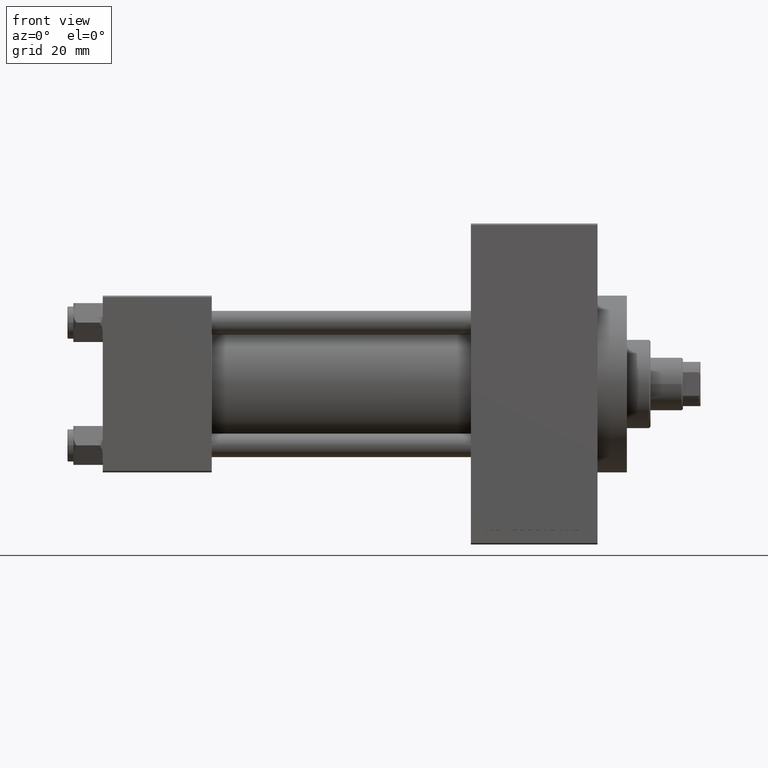
[diagram: clean part render]
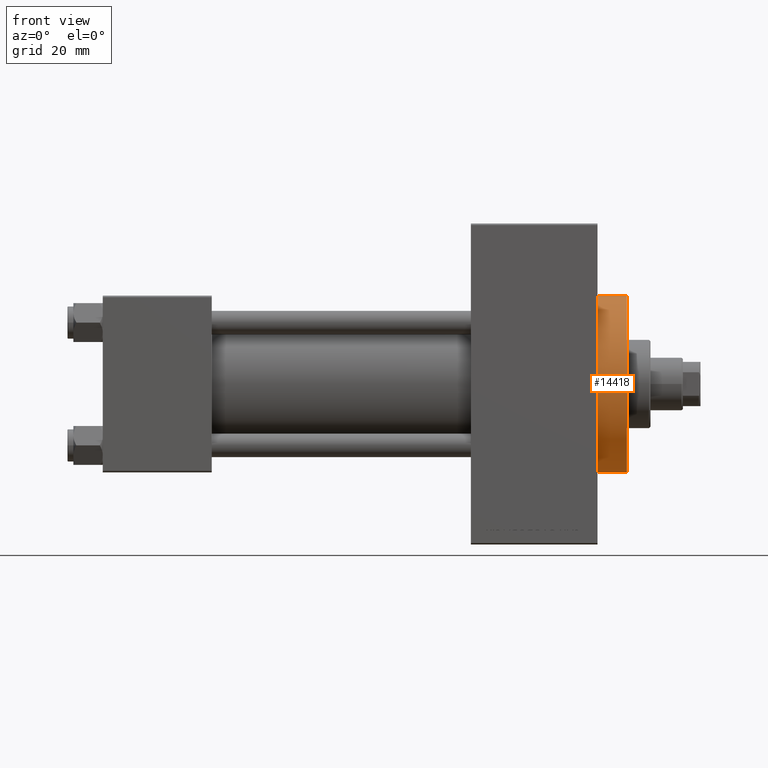
[diagram: same view with one face highlighted and labeled with its STEP entity id]
A machine part, front view. The second image highlights one B-rep face of the part: STEP entity #14418.
In plain terms, the highlighted cylindrical surface (partial cylindrical patch) has radius 30 mm, axis along (-1, -0, -0).
Its self-contained STEP definition (entity closure, byte-faithful):
#524 = VERTEX_POINT ( 'NONE', #17421 ) ;
#1180 = CARTESIAN_POINT ( 'NONE',  ( 178.0000000000000000, 0.000000000000000000, 30.00000000000000000 ) ) ;
#1200 = CARTESIAN_POINT ( 'NONE',  ( 167.9999999999999716, 0.000000000000000000, 0.000000000000000000 ) ) ;
#1450 = CYLINDRICAL_SURFACE ( 'NONE', #45711, 30.00000000000000000 ) ;
#2148 = FACE_OUTER_BOUND ( 'NONE', #44214, .T. ) ;
#2491 = CARTESIAN_POINT ( 'NONE',  ( 178.0000000000000000, 3.673940397442059178E-15, -30.00000000000000000 ) ) ;
#3635 = CARTESIAN_POINT ( 'NONE',  ( 178.0000000000000000, 0.000000000000000000, 30.00000000000000000 ) ) ;
#4880 = AXIS2_PLACEMENT_3D ( 'NONE', #45849, #24090, #27914 ) ;
#5480 = ORIENTED_EDGE ( 'NONE', *, *, #6774, .F. ) ;
#6774 = EDGE_CURVE ( 'NONE', #9999, #524, #34966, .T. ) ;
#7449 = VERTEX_POINT ( 'NONE', #20222 ) ;
#8022 = DIRECTION ( 'NONE',  ( 0.000000000000000000, 0.000000000000000000, -1.000000000000000000 ) ) ;
#9320 = DIRECTION ( 'NONE',  ( -1.000000000000000000, -0.000000000000000000, -0.000000000000000000 ) ) ;
#9999 = VERTEX_POINT ( 'NONE', #23067 ) ;
#11414 = ORIENTED_EDGE ( 'NONE', *, *, #28260, .F. ) ;
#11943 = ORIENTED_EDGE ( 'NONE', *, *, #22233, .T. ) ;
#12914 = EDGE_CURVE ( 'NONE', #41263, #524, #47216, .T. ) ;
#13714 = CIRCLE ( 'NONE', #25935, 30.00000000000000000 ) ;
#14418 = ADVANCED_FACE ( 'NONE', ( #2148 ), #1450, .T. ) ;
#15746 = DIRECTION ( 'NONE',  ( 1.000000000000000000, 0.000000000000000000, 0.000000000000000000 ) ) ;
#16000 = DIRECTION ( 'NONE',  ( 0.000000000000000000, 0.000000000000000000, 1.000000000000000000 ) ) ;
#16245 = CARTESIAN_POINT ( 'NONE',  ( 178.0000000000000000, 0.000000000000000000, 0.000000000000000000 ) ) ;
#16573 = DIRECTION ( 'NONE',  ( -1.000000000000000000, -0.000000000000000000, -0.000000000000000000 ) ) ;
#17421 = CARTESIAN_POINT ( 'NONE',  ( 167.9999999999999716, 3.673940397442059178E-15, -30.00000000000000000 ) ) ;
#19045 = ORIENTED_EDGE ( 'NONE', *, *, #38627, .T. ) ;
#20222 = CARTESIAN_POINT ( 'NONE',  ( 167.9999999999999716, 0.000000000000000000, 30.00000000000000000 ) ) ;
#21594 = VECTOR ( 'NONE', #37067, 1000.000000000000000 ) ;
#22080 = CARTESIAN_POINT ( 'NONE',  ( 167.9999999999999716, 0.000000000000000000, 0.000000000000000000 ) ) ;
#22233 = EDGE_CURVE ( 'NONE', #42835, #7449, #44704, .T. ) ;
#23067 = CARTESIAN_POINT ( 'NONE',  ( 178.0000000000000000, 3.673940397442059178E-15, -30.00000000000000000 ) ) ;
#23537 = AXIS2_PLACEMENT_3D ( 'NONE', #1200, #15746, #30547 ) ;
#24090 = DIRECTION ( 'NONE',  ( 1.000000000000000000, 0.000000000000000000, 0.000000000000000000 ) ) ;
#25906 = DIRECTION ( 'NONE',  ( 1.000000000000000000, 0.000000000000000000, 0.000000000000000000 ) ) ;
#25935 = AXIS2_PLACEMENT_3D ( 'NONE', #22080, #25906, #8022 ) ;
#27914 = DIRECTION ( 'NONE',  ( 0.000000000000000000, 0.000000000000000000, -1.000000000000000000 ) ) ;
#28260 = EDGE_CURVE ( 'NONE', #42835, #9999, #44535, .T. ) ;
#30547 = DIRECTION ( 'NONE',  ( 0.000000000000000000, 0.000000000000000000, -1.000000000000000000 ) ) ;
#31631 = CARTESIAN_POINT ( 'NONE',  ( 167.9999999999999716, -30.00000000000000000, 0.000000000000000000 ) ) ;
#34966 = LINE ( 'NONE', #2491, #46644 ) ;
#37067 = DIRECTION ( 'NONE',  ( -1.000000000000000000, -0.000000000000000000, -0.000000000000000000 ) ) ;
#38627 = EDGE_CURVE ( 'NONE', #7449, #41263, #13714, .T. ) ;
#41263 = VERTEX_POINT ( 'NONE', #31631 ) ;
#42835 = VERTEX_POINT ( 'NONE', #1180 ) ;
#44214 = EDGE_LOOP ( 'NONE', ( #5480, #11414, #11943, #19045, #45762 ) ) ;
#44535 = CIRCLE ( 'NONE', #4880, 30.00000000000000000 ) ;
#44704 = LINE ( 'NONE', #3635, #21594 ) ;
#45711 = AXIS2_PLACEMENT_3D ( 'NONE', #16245, #9320, #16000 ) ;
#45762 = ORIENTED_EDGE ( 'NONE', *, *, #12914, .T. ) ;
#45849 = CARTESIAN_POINT ( 'NONE',  ( 178.0000000000000000, 0.000000000000000000, 0.000000000000000000 ) ) ;
#46644 = VECTOR ( 'NONE', #16573, 1000.000000000000000 ) ;
#47216 = CIRCLE ( 'NONE', #23537, 30.00000000000000000 ) ;